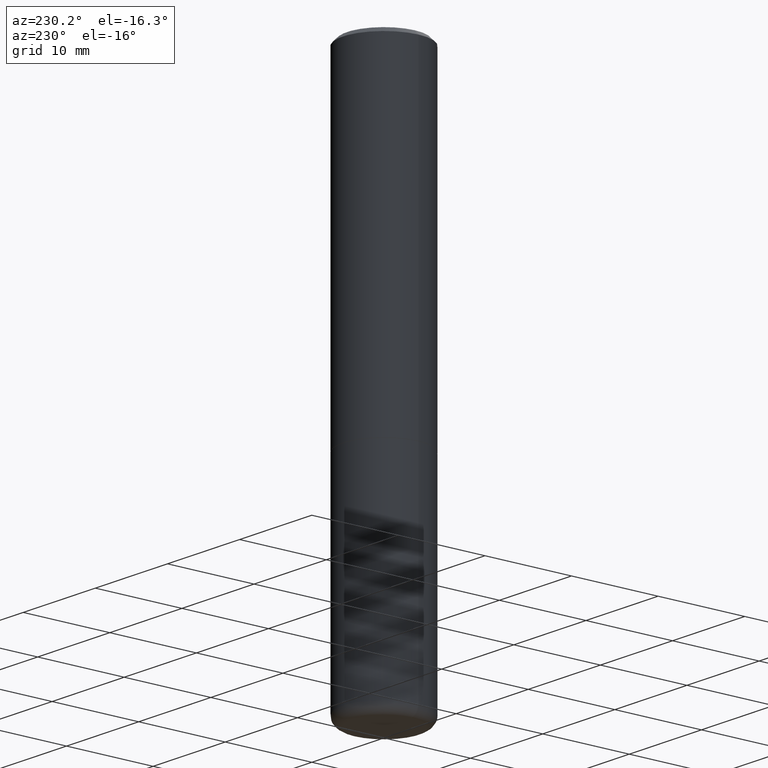
[diagram: clean part render]
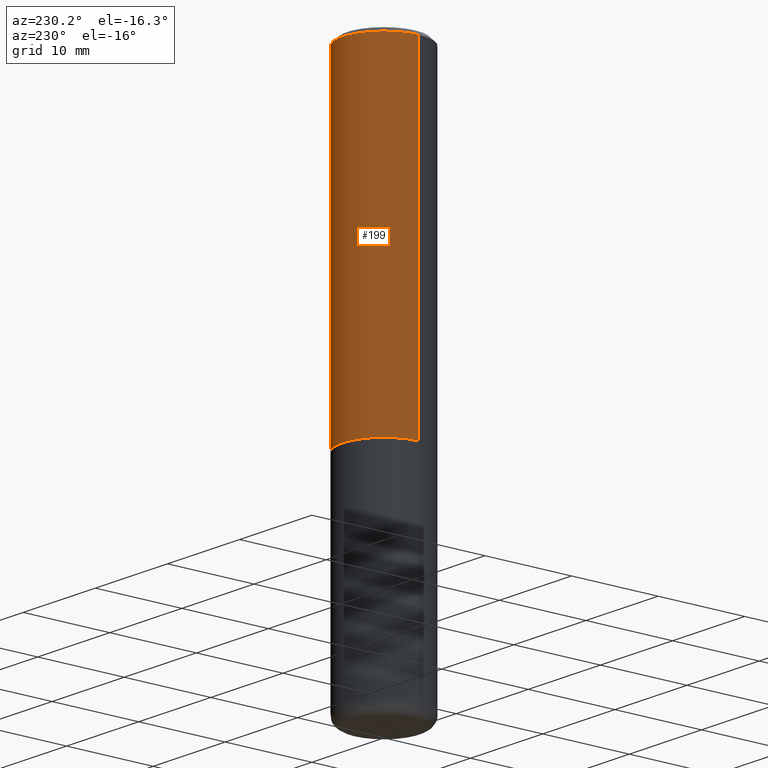
[diagram: same view with one face highlighted and labeled with its STEP entity id]
A machine part, auxiliary view. The second image highlights one B-rep face of the part: STEP entity #199.
In plain terms, the highlighted cylindrical surface (partial cylindrical patch) has radius 4.7625 mm, axis along (-0, 0, 1).
Its self-contained STEP definition (entity closure, byte-faithful):
#25 = LINE ( 'NONE', #426, #254 ) ;
#26 = CYLINDRICAL_SURFACE ( 'NONE', #326, 0.1874999999999999167 ) ;
#29 = CARTESIAN_POINT ( 'NONE',  ( -0.1874999999999999722, -1.319512447301180399E-15, -1.499000000000000110 ) ) ;
#30 = CARTESIAN_POINT ( 'NONE',  ( 0.000000000000000000, 0.000000000000000000, 0.000000000000000000 ) ) ;
#36 = VERTEX_POINT ( 'NONE', #344 ) ;
#41 = VERTEX_POINT ( 'NONE', #175 ) ;
#60 = EDGE_CURVE ( 'NONE', #146, #440, #140, .T. ) ;
#67 = AXIS2_PLACEMENT_3D ( 'NONE', #186, #320, #156 ) ;
#77 = ORIENTED_EDGE ( 'NONE', *, *, #60, .T. ) ;
#89 = DIRECTION ( 'NONE',  ( -2.445468806185136597E-29, 3.491481338843145583E-15, 1.000000000000000000 ) ) ;
#98 = CIRCLE ( 'NONE', #154, 0.1874999999999998057 ) ;
#105 = CARTESIAN_POINT ( 'NONE',  ( -0.1874999999999999167, 1.332267629550187257E-15, -9.223003294227943787E-30 ) ) ;
#111 = ORIENTED_EDGE ( 'NONE', *, *, #169, .T. ) ;
#118 = EDGE_LOOP ( 'NONE', ( #77, #111, #122, #241 ) ) ;
#122 = ORIENTED_EDGE ( 'NONE', *, *, #206, .F. ) ;
#140 = CIRCLE ( 'NONE', #67, 0.1875000000000000278 ) ;
#146 = VERTEX_POINT ( 'NONE', #245 ) ;
#154 = AXIS2_PLACEMENT_3D ( 'NONE', #226, #349, #266 ) ;
#156 = DIRECTION ( 'NONE',  ( 1.000000000000000000, -6.982962677686266711E-15, 0.000000000000000000 ) ) ;
#169 = EDGE_CURVE ( 'NONE', #440, #41, #200, .T. ) ;
#175 = CARTESIAN_POINT ( 'NONE',  ( -0.1874999999999998057, 1.239475875289310527E-15, -0.02000000000000003164 ) ) ;
#186 = CARTESIAN_POINT ( 'NONE',  ( 3.665757740471519853E-29, -5.233730526925875958E-15, -1.499000000000000110 ) ) ;
#199 = ADVANCED_FACE ( 'NONE', ( #366 ), #26, .T. ) ;
#200 = LINE ( 'NONE', #105, #298 ) ;
#206 = EDGE_CURVE ( 'NONE', #36, #41, #98, .T. ) ;
#226 = CARTESIAN_POINT ( 'NONE',  ( 4.890937612370280165E-31, -6.982962677686301470E-17, -0.02000000000000003164 ) ) ;
#231 = DIRECTION ( 'NONE',  ( -2.445468806185136877E-29, 3.491481338843145188E-15, 1.000000000000000000 ) ) ;
#241 = ORIENTED_EDGE ( 'NONE', *, *, #296, .F. ) ;
#245 = CARTESIAN_POINT ( 'NONE',  ( 0.1875000000000000278, -6.543036028992050967E-15, -1.499000000000000110 ) ) ;
#254 = VECTOR ( 'NONE', #360, 39.37007874015748143 ) ;
#266 = DIRECTION ( 'NONE',  ( 1.000000000000000000, -6.982962677686266711E-15, 0.000000000000000000 ) ) ;
#296 = EDGE_CURVE ( 'NONE', #146, #36, #25, .T. ) ;
#298 = VECTOR ( 'NONE', #231, 39.37007874015748143 ) ;
#320 = DIRECTION ( 'NONE',  ( -2.445468806185136597E-29, 3.491481338843145583E-15, 1.000000000000000000 ) ) ;
#326 = AXIS2_PLACEMENT_3D ( 'NONE', #30, #89, #390 ) ;
#344 = CARTESIAN_POINT ( 'NONE',  ( 0.1874999999999998057, -1.356173001359023888E-15, -0.02000000000000003164 ) ) ;
#349 = DIRECTION ( 'NONE',  ( -2.445468806185136597E-29, 3.491481338843145583E-15, 1.000000000000000000 ) ) ;
#360 = DIRECTION ( 'NONE',  ( -2.445468806185136877E-29, 3.491481338843145188E-15, 1.000000000000000000 ) ) ;
#366 = FACE_OUTER_BOUND ( 'NONE', #118, .T. ) ;
#390 = DIRECTION ( 'NONE',  ( 1.000000000000000000, -6.982962677686265922E-15, 4.876176775795935793E-29 ) ) ;
#426 = CARTESIAN_POINT ( 'NONE',  ( 0.1874999999999999167, -1.309305502066174219E-15, 9.142831454617375408E-30 ) ) ;
#440 = VERTEX_POINT ( 'NONE', #29 ) ;